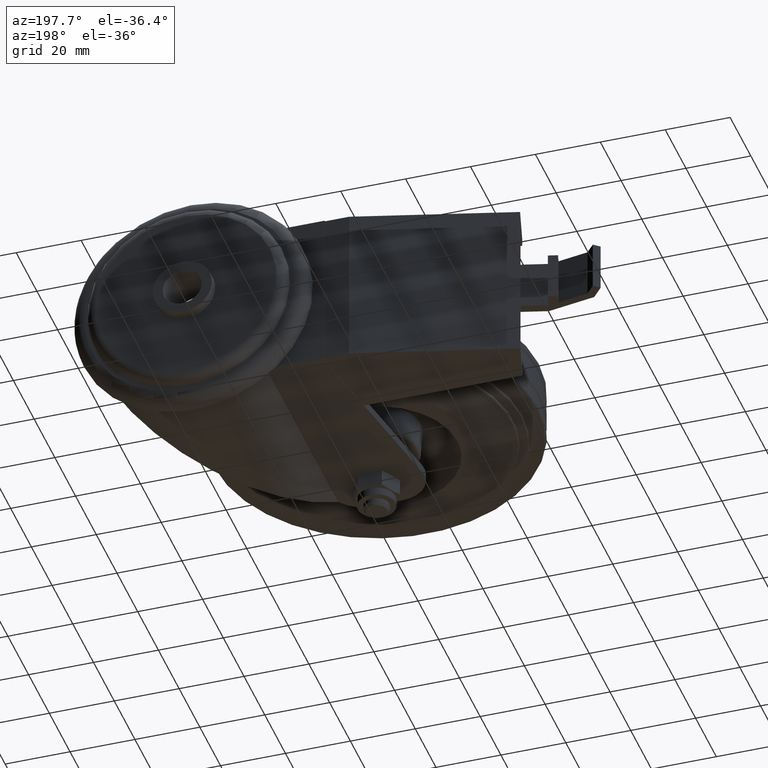
[diagram: clean part render]
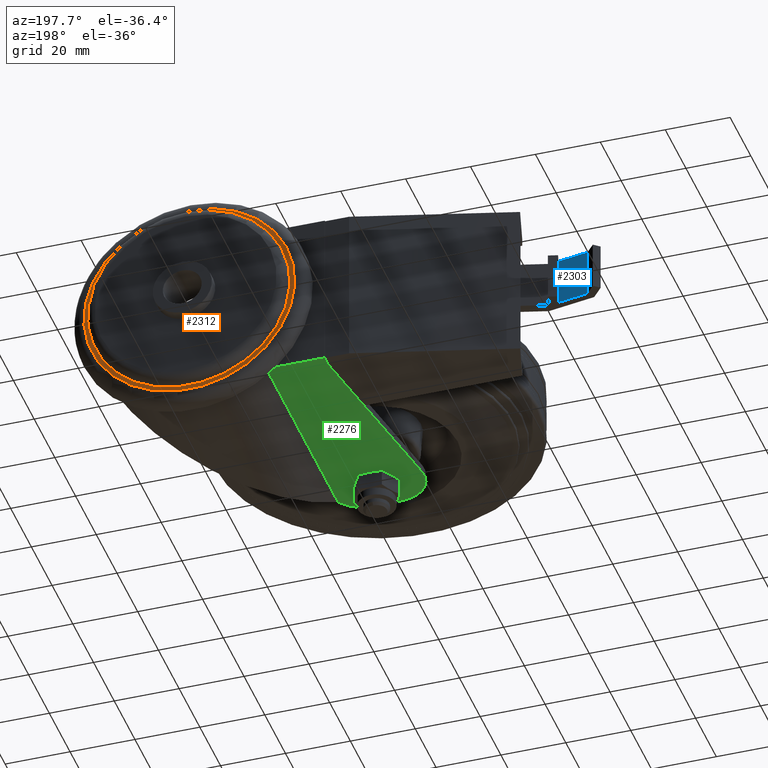
[diagram: same view with three faces highlighted in distinct colors, each labeled with its STEP entity id]
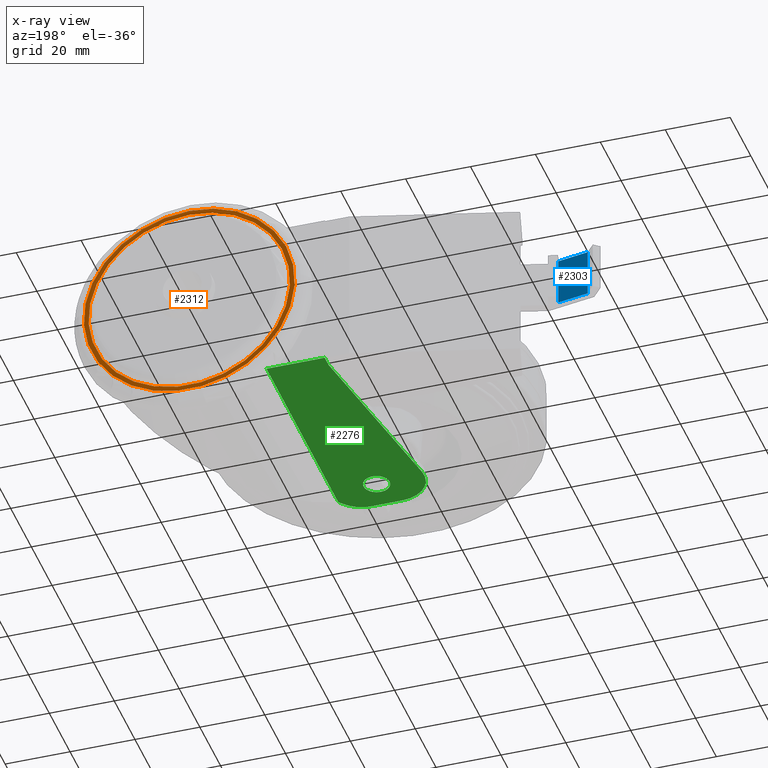
[diagram: x-ray of the same camera — body ghosted, the three highlighted faces saturated]
A machine part, auxiliary view with three faces highlighted in distinct colors.
The next image is the same camera in x-ray (body ghosted, the three faces saturated) — at least one of them is partly hidden behind the body in this view.
Their STEP definitions:

[orange] entity #2312 — the highlighted planar face has unit normal (0, -1, 0).
#187=FACE_BOUND('',#490,.T.);
#246=PLANE('',#2604);
#331=FACE_OUTER_BOUND('',#489,.T.);
#489=EDGE_LOOP('',(#1848));
#490=EDGE_LOOP('',(#1849));
#635=CIRCLE('',#2603,31.025);
#636=CIRCLE('',#2605,32.5);
#1129=VERTEX_POINT('',#3837);
#1130=VERTEX_POINT('',#3841);
#1381=EDGE_CURVE('',#1129,#1129,#635,.T.);
#1383=EDGE_CURVE('',#1130,#1130,#636,.T.);
#1848=ORIENTED_EDGE('',*,*,#1383,.F.);
#1849=ORIENTED_EDGE('',*,*,#1381,.T.);
#2312=ADVANCED_FACE('',(#331,#187),#246,.F.);
#2603=AXIS2_PLACEMENT_3D('',#3838,#3089,#3090);
#2604=AXIS2_PLACEMENT_3D('',#3840,#3092,#3093);
#2605=AXIS2_PLACEMENT_3D('',#3842,#3094,#3095);
#3089=DIRECTION('center_axis',(0.,-1.,0.));
#3090=DIRECTION('ref_axis',(0.,0.,-1.));
#3092=DIRECTION('center_axis',(0.,-1.,0.));
#3093=DIRECTION('ref_axis',(0.,0.,-1.));
#3094=DIRECTION('center_axis',(0.,-1.,0.));
#3095=DIRECTION('ref_axis',(0.,0.,-1.));
#3837=CARTESIAN_POINT('',(35.,71.2,31.025));
#3838=CARTESIAN_POINT('Origin',(35.,71.2,0.));
#3840=CARTESIAN_POINT('Origin',(66.025,71.2,0.));
#3841=CARTESIAN_POINT('',(35.,71.2,32.5));
#3842=CARTESIAN_POINT('Origin',(35.,71.2,0.));

[blue] entity #2303 — the highlighted planar face has unit normal (-0.1736, -0.9848, 0).
#240=PLANE('',#2588);
#322=FACE_OUTER_BOUND('',#478,.T.);
#478=EDGE_LOOP('',(#1800,#1801,#1802,#1803));
#850=LINE('',#3807,#994);
#852=LINE('',#3811,#996);
#853=LINE('',#3813,#997);
#854=LINE('',#3814,#998);
#994=VECTOR('',#3051,1000.);
#996=VECTOR('',#3055,1000.);
#997=VECTOR('',#3056,1000.);
#998=VECTOR('',#3057,1000.);
#1120=VERTEX_POINT('',#3804);
#1121=VERTEX_POINT('',#3806);
#1122=VERTEX_POINT('',#3810);
#1123=VERTEX_POINT('',#3812);
#1367=EDGE_CURVE('',#1121,#1120,#850,.T.);
#1369=EDGE_CURVE('',#1120,#1122,#852,.T.);
#1370=EDGE_CURVE('',#1123,#1122,#853,.T.);
#1371=EDGE_CURVE('',#1121,#1123,#854,.T.);
#1800=ORIENTED_EDGE('',*,*,#1369,.T.);
#1801=ORIENTED_EDGE('',*,*,#1370,.F.);
#1802=ORIENTED_EDGE('',*,*,#1371,.F.);
#1803=ORIENTED_EDGE('',*,*,#1367,.T.);
#2303=ADVANCED_FACE('',(#322),#240,.F.);
#2588=AXIS2_PLACEMENT_3D('',#3809,#3053,#3054);
#3051=DIRECTION('',(0.,0.,-1.));
#3053=DIRECTION('center_axis',(-0.17364817766693,-0.984807753012208,0.));
#3054=DIRECTION('ref_axis',(0.984807753012208,-0.17364817766693,0.));
#3055=DIRECTION('',(-0.984807753012208,0.17364817766693,0.));
#3056=DIRECTION('',(0.,0.,-1.));
#3057=DIRECTION('',(-0.984807753012208,0.17364817766693,0.));
#3804=CARTESIAN_POINT('',(-70.9877290921071,46.7953621274103,-7.5));
#3806=CARTESIAN_POINT('',(-70.9877290921071,46.7953621274103,7.5));
#3807=CARTESIAN_POINT('',(-70.9877290921071,46.7953621274103,7.5));
#3809=CARTESIAN_POINT('Origin',(-70.9877290921071,46.7953621274103,7.5));
#3810=CARTESIAN_POINT('',(-80.4558397359724,48.4648454902567,-7.5));
#3811=CARTESIAN_POINT('',(-70.9877290921071,46.7953621274103,-7.5));
#3812=CARTESIAN_POINT('',(-80.4558397359724,48.4648454902567,7.5));
#3813=CARTESIAN_POINT('',(-80.4558397359724,48.4648454902567,7.5));
#3814=CARTESIAN_POINT('',(-70.9877290921071,46.7953621274103,7.5));

[green] entity #2276 — the highlighted planar face has unit normal (0, 0, 1).
#181=FACE_BOUND('',#448,.T.);
#215=PLANE('',#2557);
#295=FACE_OUTER_BOUND('',#447,.T.);
#447=EDGE_LOOP('',(#1653,#1654,#1655,#1656,#1657,#1658,#1659,#1660));
#448=EDGE_LOOP('',(#1661));
#615=CIRCLE('',#2537,10.);
#621=CIRCLE('',#2551,9.99999999999999);
#625=CIRCLE('',#2558,4.);
#751=LINE('',#3571,#895);
#766=LINE('',#3607,#910);
#774=LINE('',#3635,#918);
#781=LINE('',#3648,#925);
#787=LINE('',#3672,#931);
#788=LINE('',#3673,#932);
#895=VECTOR('',#2836,1000.);
#910=VECTOR('',#2861,1000.);
#918=VECTOR('',#2887,1000.);
#925=VECTOR('',#2898,1000.);
#931=VECTOR('',#2928,1000.);
#932=VECTOR('',#2929,1000.);
#1041=VERTEX_POINT('',#3568);
#1042=VERTEX_POINT('',#3570);
#1057=VERTEX_POINT('',#3604);
#1058=VERTEX_POINT('',#3606);
#1061=VERTEX_POINT('',#3613);
#1062=VERTEX_POINT('',#3615);
#1073=VERTEX_POINT('',#3646);
#1079=VERTEX_POINT('',#3671);
#1080=VERTEX_POINT('',#3674);
#1249=EDGE_CURVE('',#1042,#1041,#751,.T.);
#1266=EDGE_CURVE('',#1057,#1058,#766,.T.);
#1270=EDGE_CURVE('',#1062,#1061,#615,.F.);
#1280=EDGE_CURVE('',#1062,#1041,#774,.T.);
#1287=EDGE_CURVE('',#1073,#1061,#781,.T.);
#1291=EDGE_CURVE('',#1073,#1058,#621,.F.);
#1300=EDGE_CURVE('',#1079,#1057,#787,.T.);
#1301=EDGE_CURVE('',#1042,#1079,#788,.T.);
#1302=EDGE_CURVE('',#1080,#1080,#625,.F.);
#1653=ORIENTED_EDGE('',*,*,#1280,.F.);
#1654=ORIENTED_EDGE('',*,*,#1270,.T.);
#1655=ORIENTED_EDGE('',*,*,#1287,.F.);
#1656=ORIENTED_EDGE('',*,*,#1291,.T.);
#1657=ORIENTED_EDGE('',*,*,#1266,.F.);
#1658=ORIENTED_EDGE('',*,*,#1300,.F.);
#1659=ORIENTED_EDGE('',*,*,#1301,.F.);
#1660=ORIENTED_EDGE('',*,*,#1249,.T.);
#1661=ORIENTED_EDGE('',*,*,#1302,.F.);
#2276=ADVANCED_FACE('',(#295,#181),#215,.F.);
#2537=AXIS2_PLACEMENT_3D('',#3616,#2868,#2869);
#2551=AXIS2_PLACEMENT_3D('',#3654,#2909,#2910);
#2557=AXIS2_PLACEMENT_3D('',#3670,#2926,#2927);
#2558=AXIS2_PLACEMENT_3D('',#3675,#2930,#2931);
#2836=DIRECTION('',(0.,-1.,0.));
#2861=DIRECTION('',(-0.1685477470756,-0.985693490368958,0.));
#2868=DIRECTION('center_axis',(0.,0.,1.));
#2869=DIRECTION('ref_axis',(1.,0.,0.));
#2887=DIRECTION('',(0.608057671362319,0.79389285693816,0.));
#2898=DIRECTION('',(1.,0.,0.));
#2909=DIRECTION('center_axis',(0.,0.,1.));
#2910=DIRECTION('ref_axis',(1.,0.,0.));
#2926=DIRECTION('center_axis',(0.,0.,1.));
#2927=DIRECTION('ref_axis',(1.,0.,0.));
#2928=DIRECTION('',(0.,-1.,0.));
#2929=DIRECTION('',(-1.,0.,0.));
#2930=DIRECTION('center_axis',(0.,0.,1.));
#2931=DIRECTION('ref_axis',(1.,0.,0.));
#3568=CARTESIAN_POINT('',(13.459340771462,-5.0094293247295,-25.));
#3570=CARTESIAN_POINT('',(13.459340771462,64.2,-25.));
#3571=CARTESIAN_POINT('',(13.459340771462,-10.,-25.));
#3604=CARTESIAN_POINT('',(-4.5,60.5,-25.));
#3606=CARTESIAN_POINT('',(-14.5569349036896,1.685477470756,-25.));
#3607=CARTESIAN_POINT('',(-14.4234156913816,2.46631863116723,-25.));
#3613=CARTESIAN_POINT('',(4.69999999999999,-10.,-25.));
#3615=CARTESIAN_POINT('',(12.6389285693816,-6.08057671362318,-25.));
#3616=CARTESIAN_POINT('Origin',(4.69999999999999,6.07153216591882E-15,-25.));
#3635=CARTESIAN_POINT('',(10.9011781503795,-8.34942013055787,-25.));
#3646=CARTESIAN_POINT('',(-4.7,-10.,-25.));
#3648=CARTESIAN_POINT('',(0.,-10.,-25.));
#3654=CARTESIAN_POINT('Origin',(-4.70000000000001,-5.20417042793042E-15,
-25.));
#3670=CARTESIAN_POINT('Origin',(0.,0.,-25.));
#3671=CARTESIAN_POINT('',(-4.5,64.2,-25.));
#3672=CARTESIAN_POINT('',(-4.5,0.,-25.));
#3673=CARTESIAN_POINT('',(30.,64.2,-25.));
#3674=CARTESIAN_POINT('',(4.,0.,-25.));
#3675=CARTESIAN_POINT('Origin',(0.,0.,-25.));